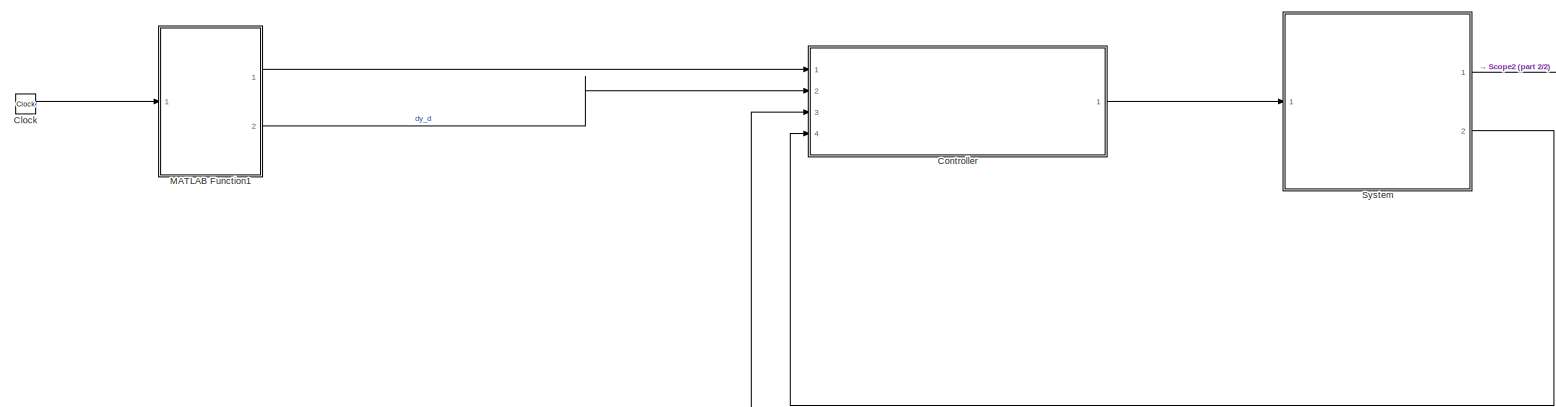
[diagram: root canvas - part 1/2, most of the canvas]
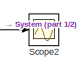
[diagram: root canvas - part 2/2, top right region]
MODEL slx_95f1854b85dc
KIND model
CONFIG AbsTol = auto
CONFIG EnableMultiTasking = off
CONFIG FixedStep = auto
CONFIG InitFcn = start;
CONFIG MaxStep = 1e-2
CONFIG MinStep = auto
CONFIG RelTol = 1e-3
CONFIG SampleTimeConstraint = Unconstrained
CONFIG SolverName = VariableStepAuto
CONFIG StartTime = 0.0
CONFIG StopTime = 10.0
BLOCK [Clock] Clock
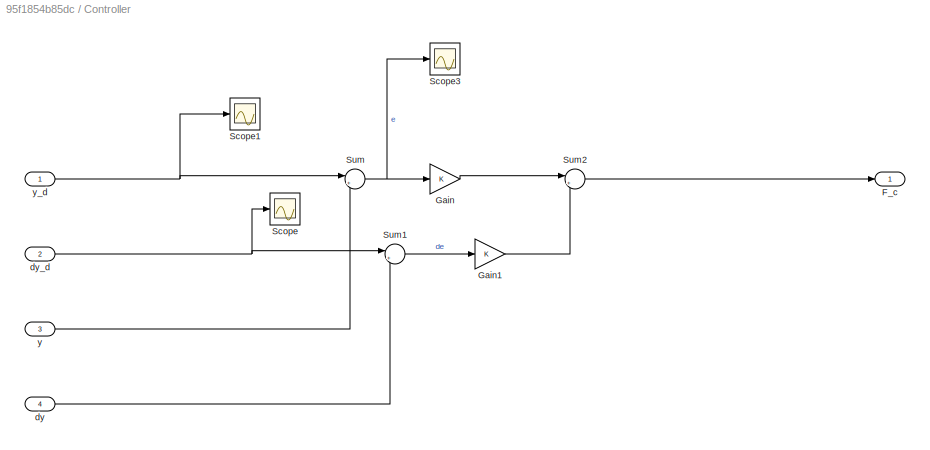
BLOCK [SubSystem] Controller
  Ports = [4, 1]
  RequestExecContextInheritance = off
BLOCK [Outport] Controller/F_c
BLOCK [Gain] Controller/Gain
BLOCK [Gain] Controller/Gain1
BLOCK [Scope] Controller/Scope
  Floating = off
  NumInputPorts = 1
  Ports = [1]
  ScopeSpecificationString = Simulink.scopes.TimeScopeBlockCfg('CurrentConfiguration', extmgr.ConfigurationSet(extmgr.Configuration('Core','General UI',true),extmgr.Configuration('Core','Source UI',true),extmgr.Configuration('Sources','WiredSimulink',true),extmgr.Configuration('Visuals','Time Domain',true,'SerializedDisplays',{struct('MinYLimReal','-1.25','MaxYLimReal','1.25','YLabelReal','','MinYLimMag','0.00000','MaxYLimMag...<+1306ch>
BLOCK [Scope] Controller/Scope1
  Floating = off
  NumInputPorts = 1
  Ports = [1]
  ScopeSpecificationString = Simulink.scopes.TimeScopeBlockCfg('CurrentConfiguration', extmgr.ConfigurationSet(extmgr.Configuration('Core','General UI',true),extmgr.Configuration('Core','Source UI',true),extmgr.Configuration('Sources','WiredSimulink',true,'DataLoggingVariableName','ScopeData1'),extmgr.Configuration('Visuals','Time Domain',true,'SerializedDisplays',{struct('MinYLimReal','-1.24999','MaxYLimReal','1.25','YLabelR...<+1367ch>
BLOCK [Scope] Controller/Scope3
  Floating = off
  NumInputPorts = 1
  Ports = [1]
  ScopeSpecificationString = Simulink.scopes.TimeScopeBlockCfg('CurrentConfiguration', extmgr.ConfigurationSet(extmgr.Configuration('Core','General UI',true),extmgr.Configuration('Core','Source UI',true),extmgr.Configuration('Sources','WiredSimulink',true,'DataLoggingVariableName','ScopeData3'),extmgr.Configuration('Visuals','Time Domain',true,'SerializedDisplays',{struct('MinYLimReal','-0.63302','MaxYLimReal','0.70892','YLab...<+1360ch>
BLOCK [Sum] Controller/Sum
  Inputs = |+-
  Ports = [2, 1]
BLOCK [Sum] Controller/Sum1
  Inputs = |+-
  Ports = [2, 1]
BLOCK [Sum] Controller/Sum2
  Inputs = |++
  Ports = [2, 1]
BLOCK [Inport] Controller/dy
  Port = 4
BLOCK [Inport] Controller/dy_d
  Port = 2
BLOCK [Inport] Controller/y
  Port = 3
BLOCK [Inport] Controller/y_d
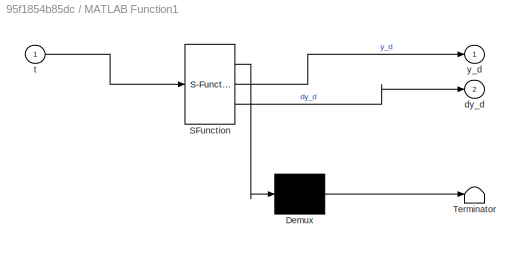
BLOCK [SubSystem] MATLAB Function1
  ErrorFcn = Stateflow.Translate.translate
  PermitHierarchicalResolution = ExplicitOnly
  Ports = [1, 2]
  RequestExecContextInheritance = off
  SFBlockType = MATLAB Function
  TreatAsAtomicUnit = on
BLOCK [Demux] MATLAB Function1/ Demux 
  Outputs = 1
  Ports = [1, 1]
BLOCK [S-Function] MATLAB Function1/ SFunction 
  EnableBusSupport = on
  FunctionName = sf_sfun
  PortCounts = [1 3]
  Ports = [1, 3]
  SFcnIsStateOwnerBlock = off
  SFunctionDeploymentMode = off
  Tag = Stateflow S-Function 1
BLOCK [Terminator] MATLAB Function1/ Terminator 
BLOCK [Outport] MATLAB Function1/dy_d
  Port = 2
BLOCK [Inport] MATLAB Function1/t
BLOCK [Outport] MATLAB Function1/y_d
BLOCK [Scope] Scope2
  Floating = off
  NumInputPorts = 1
  Ports = [1]
  ScopeSpecificationString = Simulink.scopes.TimeScopeBlockCfg('CurrentConfiguration', extmgr.ConfigurationSet(extmgr.Configuration('Core','General UI',true),extmgr.Configuration('Core','Source UI',true),extmgr.Configuration('Sources','WiredSimulink',true,'DataLoggingVariableName','ScopeData2'),extmgr.Configuration('Visuals','Time Domain',true,'SerializedDisplays',{struct('MinYLimReal','-0.62635','MaxYLimReal','0.6253','YLabe...<+1385ch>
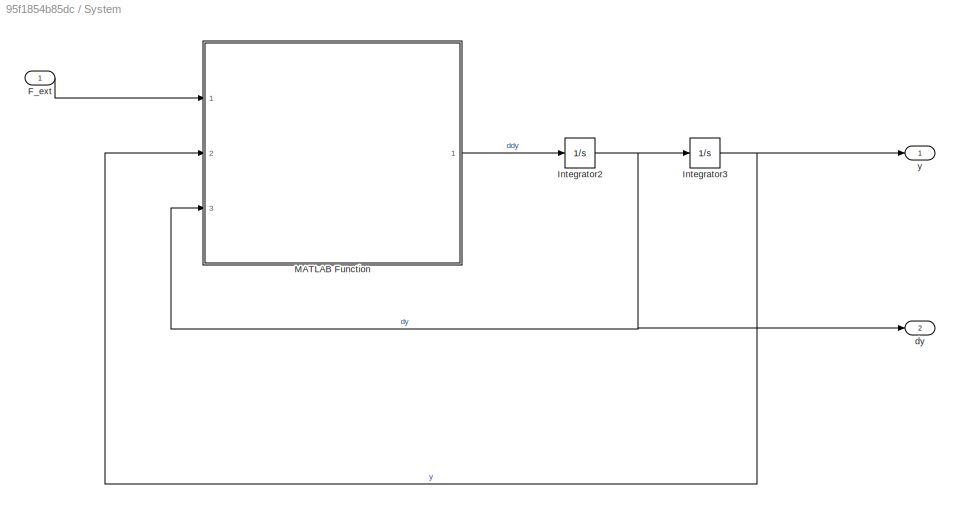
BLOCK [SubSystem] System
  Ports = [1, 2]
  RequestExecContextInheritance = off
BLOCK [Inport] System/F_ext
BLOCK [Integrator] System/Integrator2
  InitialCondition = dy0
  Ports = [1, 1]
BLOCK [Integrator] System/Integrator3
  InitialCondition = y0
  Ports = [1, 1]
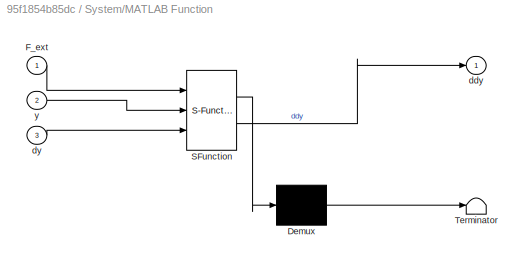
BLOCK [SubSystem] System/MATLAB Function
  ErrorFcn = Stateflow.Translate.translate
  PermitHierarchicalResolution = ExplicitOnly
  Ports = [3, 1]
  RequestExecContextInheritance = off
  SFBlockType = MATLAB Function
  TreatAsAtomicUnit = on
BLOCK [Demux] System/MATLAB Function/ Demux 
  Outputs = 1
  Ports = [1, 1]
BLOCK [S-Function] System/MATLAB Function/ SFunction 
  EnableBusSupport = on
  FunctionName = sf_sfun
  Parameters = d,k,m
  PortCounts = [3 2]
  Ports = [3, 2]
  SFcnIsStateOwnerBlock = off
  SFunctionDeploymentMode = off
  Tag = Stateflow S-Function 2
BLOCK [Terminator] System/MATLAB Function/ Terminator 
BLOCK [Inport] System/MATLAB Function/F_ext
BLOCK [Outport] System/MATLAB Function/ddy
BLOCK [Inport] System/MATLAB Function/dy
  Port = 3
BLOCK [Inport] System/MATLAB Function/y
  Port = 2
BLOCK [Outport] System/dy
  Port = 2
BLOCK [Outport] System/y
LINE Clock:1 -> MATLAB Function1:1
LINE Controller/Gain1:1 -> Controller/Sum2:2
LINE Controller/Gain:1 -> Controller/Sum2:1
LINE Controller/Sum1:1 -> Controller/Gain1:1
LINE Controller/Sum2:1 -> Controller/F_c:1
NET Controller/Sum:1 -> Controller/Gain:1, Controller/Scope3:1
LINE Controller/dy:1 -> Controller/Sum1:2
NET Controller/dy_d:1 -> Controller/Scope:1, Controller/Sum1:1
LINE Controller/y:1 -> Controller/Sum:2
NET Controller/y_d:1 -> Controller/Scope1:1, Controller/Sum:1
LINE Controller:1 -> System:1
LINE MATLAB Function1:1 -> Controller:1
LINE MATLAB Function1:2 -> Controller:2
LINE System/F_ext:1 -> System/MATLAB Function:1
NET System/Integrator2:1 -> System/Integrator3:1, System/MATLAB Function:3, System/dy:1
NET System/Integrator3:1 -> System/MATLAB Function:2, System/y:1
LINE System/MATLAB Function:1 -> System/Integrator2:1
NET System:1 -> Controller:3, Scope2:1
LINE System:2 -> Controller:4
note: NET lines group one-source signal fan-out (src -> all destinations, sorted); 1:1 wires keep LINE
CHART MATLAB Function1 states=1 transitions=1
  STATE_LABEL 'eML_blk_kernel()'
  STATE_LABEL 'SCRIPT:\nfunction [y_d, dy_d] = fcn(t)\n\ny_d = sin(t);\ndy_d = cos(t);\n'
CHART System/MATLAB Function states=1 transitions=1
  STATE_LABEL 'eML_blk_kernel()'
  STATE_LABEL 'SCRIPT:\nfunction ddy = fcn(F_ext, y, dy, m, k, d)\n\nddy = F_ext/m - d/m*dy - k/m*y;\n'
CHART  states=0 transitions=0
CHART  states=0 transitions=0
